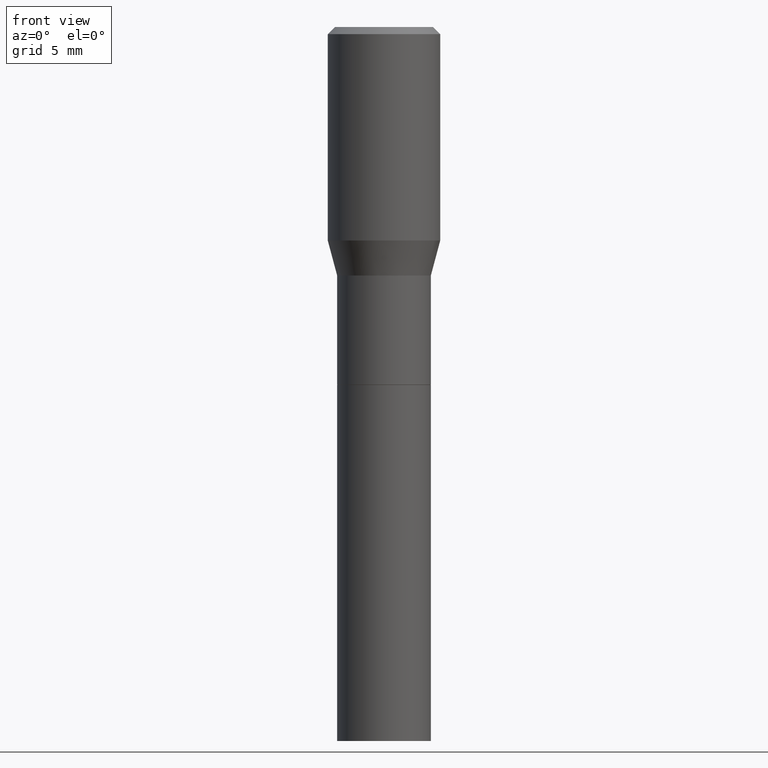
[diagram: clean part render]
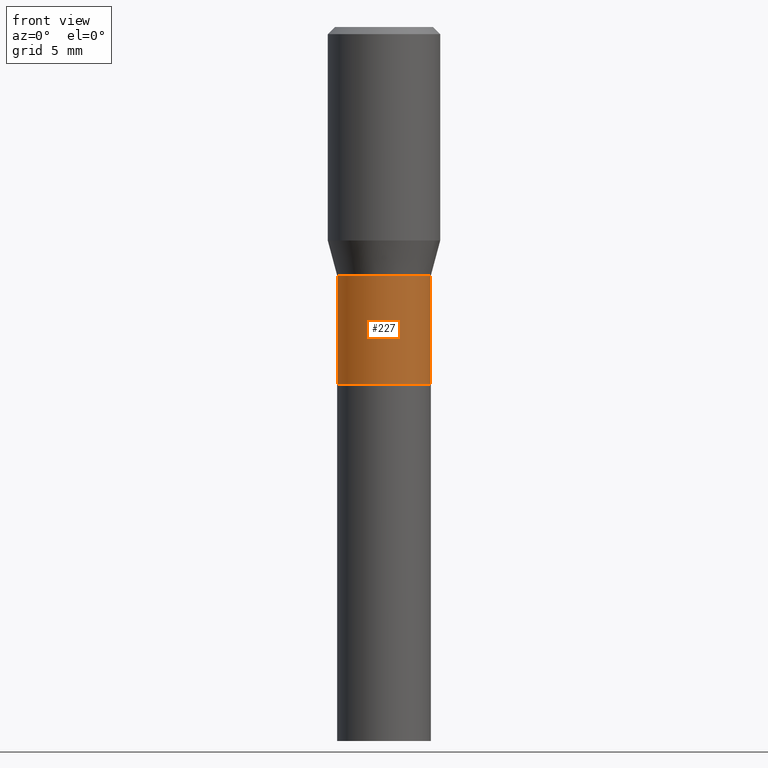
[diagram: same view with one face highlighted and labeled with its STEP entity id]
A machine part, front view. The second image highlights one B-rep face of the part: STEP entity #227.
In plain terms, the highlighted cylindrical surface (partial cylindrical patch) has radius 2.5006 mm, axis along (-0, 0, 1).
Its self-contained STEP definition (entity closure, byte-faithful):
#5 = VECTOR ( 'NONE', #199, 39.37007874015748143 ) ;
#23 = DIRECTION ( 'NONE',  ( 1.000000000000000000, -6.982962677686266711E-15, 0.000000000000000000 ) ) ;
#27 = EDGE_CURVE ( 'NONE', #139, #256, #136, .T. ) ;
#32 = CARTESIAN_POINT ( 'NONE',  ( 0.000000000000000000, 0.000000000000000000, 0.000000000000000000 ) ) ;
#45 = AXIS2_PLACEMENT_3D ( 'NONE', #32, #313, #270 ) ;
#46 = EDGE_LOOP ( 'NONE', ( #73, #269, #426, #141 ) ) ;
#58 = CARTESIAN_POINT ( 'NONE',  ( 0.09845000000000005136, -3.311320901758836948E-15, -0.7515000000000000568 ) ) ;
#68 = CARTESIAN_POINT ( 'NONE',  ( -0.09845000000000005136, 6.995293233558189979E-16, -4.842691596355956844E-30 ) ) ;
#73 = ORIENTED_EDGE ( 'NONE', *, *, #298, .F. ) ;
#97 = CARTESIAN_POINT ( 'NONE',  ( 1.837769807848130011E-29, -2.623848226140623599E-15, -0.7515000000000000568 ) ) ;
#136 = CIRCLE ( 'NONE', #431, 0.09845000000000005136 ) ;
#139 = VERTEX_POINT ( 'NONE', #344 ) ;
#141 = ORIENTED_EDGE ( 'NONE', *, *, #27, .F. ) ;
#199 = DIRECTION ( 'NONE',  ( -2.445468806185136877E-29, 3.491481338843145188E-15, 1.000000000000000000 ) ) ;
#200 = DIRECTION ( 'NONE',  ( -2.445468806185136597E-29, 3.491481338843145583E-15, 1.000000000000000000 ) ) ;
#212 = AXIS2_PLACEMENT_3D ( 'NONE', #97, #200, #23 ) ;
#223 = DIRECTION ( 'NONE',  ( -2.445468806185136597E-29, 3.491481338843145583E-15, 1.000000000000000000 ) ) ;
#227 = ADVANCED_FACE ( 'NONE', ( #309 ), #389, .T. ) ;
#235 = CARTESIAN_POINT ( 'NONE',  ( -0.09845000000000005136, -1.924318902784805094E-15, -0.7515000000000000568 ) ) ;
#237 = LINE ( 'NONE', #68, #262 ) ;
#256 = VERTEX_POINT ( 'NONE', #419 ) ;
#261 = VERTEX_POINT ( 'NONE', #235 ) ;
#262 = VECTOR ( 'NONE', #310, 39.37007874015748143 ) ;
#266 = EDGE_CURVE ( 'NONE', #261, #412, #280, .T. ) ;
#269 = ORIENTED_EDGE ( 'NONE', *, *, #266, .T. ) ;
#270 = DIRECTION ( 'NONE',  ( 1.000000000000000000, -6.982962677686266711E-15, 4.876176775795935232E-29 ) ) ;
#280 = CIRCLE ( 'NONE', #212, 0.09845000000000005136 ) ;
#285 = EDGE_CURVE ( 'NONE', #412, #256, #305, .T. ) ;
#298 = EDGE_CURVE ( 'NONE', #261, #139, #237, .T. ) ;
#305 = LINE ( 'NONE', #337, #5 ) ;
#309 = FACE_OUTER_BOUND ( 'NONE', #46, .T. ) ;
#310 = DIRECTION ( 'NONE',  ( -2.445468806185136877E-29, 3.491481338843145188E-15, 1.000000000000000000 ) ) ;
#313 = DIRECTION ( 'NONE',  ( -2.445468806185136597E-29, 3.491481338843145583E-15, 1.000000000000000000 ) ) ;
#337 = CARTESIAN_POINT ( 'NONE',  ( 0.09845000000000005136, -6.874726756182133489E-16, 4.800596035771100615E-30 ) ) ;
#344 = CARTESIAN_POINT ( 'NONE',  ( -0.09845000000000005136, -9.251895717357545429E-16, -0.5220000000000002416 ) ) ;
#389 = CYLINDRICAL_SURFACE ( 'NONE', #45, 0.09845000000000005136 ) ;
#404 = DIRECTION ( 'NONE',  ( 1.000000000000000000, -6.982962677686266711E-15, 0.000000000000000000 ) ) ;
#412 = VERTEX_POINT ( 'NONE', #58 ) ;
#419 = CARTESIAN_POINT ( 'NONE',  ( 0.09845000000000005136, -2.510025934494336044E-15, -0.5220000000000002416 ) ) ;
#426 = ORIENTED_EDGE ( 'NONE', *, *, #285, .T. ) ;
#431 = AXIS2_PLACEMENT_3D ( 'NONE', #438, #223, #404 ) ;
#438 = CARTESIAN_POINT ( 'NONE',  ( 1.276534716828641754E-29, -1.822553258876122695E-15, -0.5220000000000002416 ) ) ;